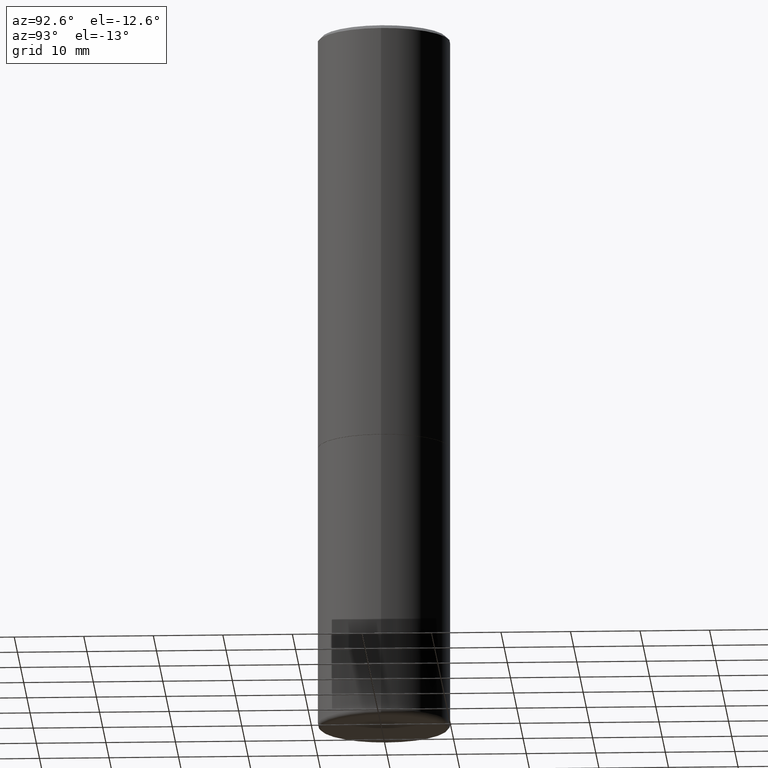
[diagram: clean part render]
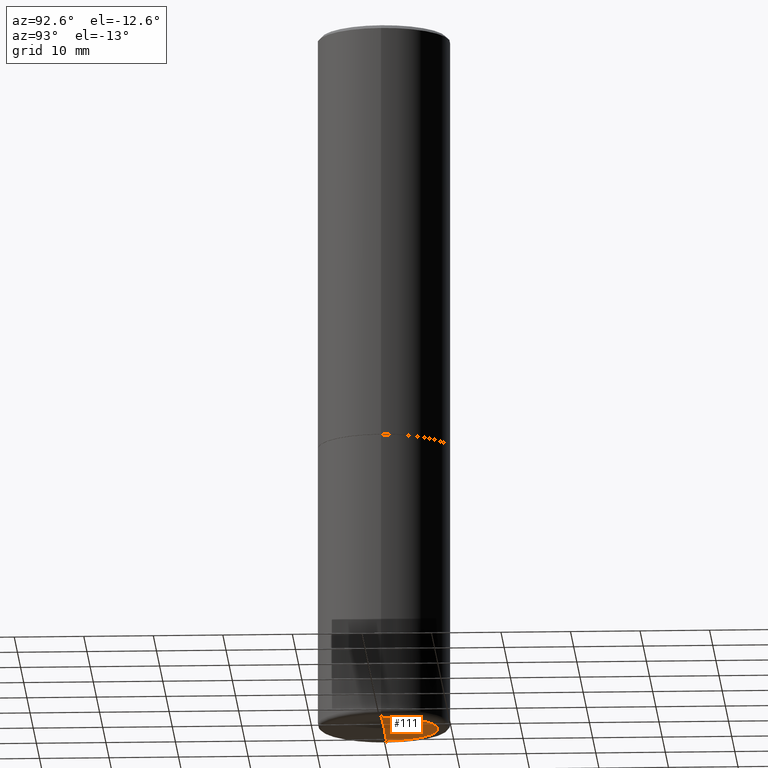
[diagram: same view with one face highlighted and labeled with its STEP entity id]
A machine part, auxiliary view. The second image highlights one B-rep face of the part: STEP entity #111.
In plain terms, the highlighted conical surface has half-angle 88 deg.
Its self-contained STEP definition (entity closure, byte-faithful):
#40 = LINE ( 'NONE', #376, #388 ) ;
#48 = DIRECTION ( 'NONE',  ( 1.000000000000000000, -6.982962677686265133E-15, 0.000000000000000000 ) ) ;
#58 = DIRECTION ( 'NONE',  ( 2.445468806185136597E-29, -3.491481338843145583E-15, -1.000000000000000000 ) ) ;
#62 = CARTESIAN_POINT ( 'NONE',  ( 9.781021626775434250E-29, -1.396470664370530441E-14, -3.999650947105539256 ) ) ;
#84 = DIRECTION ( 'NONE',  ( 0.9993908270190957621, -6.978169709227539121E-15, -0.03489949670250019204 ) ) ;
#111 = ADVANCED_FACE ( 'NONE', ( #182 ), #365, .F. ) ;
#118 = CIRCLE ( 'NONE', #171, 0.3047407039350492619 ) ;
#121 = VERTEX_POINT ( 'NONE', #140 ) ;
#125 = DIRECTION ( 'NONE',  ( -2.445468806185136597E-29, 3.491481338843145583E-15, 1.000000000000000000 ) ) ;
#127 = CARTESIAN_POINT ( 'NONE',  ( -0.3047407039350492619, -1.183671368175501508E-14, -3.999650947105539256 ) ) ;
#140 = CARTESIAN_POINT ( 'NONE',  ( 9.753116872605322365E-29, -1.393024421333557425E-14, -3.989009167228670716 ) ) ;
#143 = ORIENTED_EDGE ( 'NONE', *, *, #223, .T. ) ;
#155 = CARTESIAN_POINT ( 'NONE',  ( 9.781021626775434250E-29, -1.396470664370530441E-14, -3.999650947105539256 ) ) ;
#171 = AXIS2_PLACEMENT_3D ( 'NONE', #155, #125, #48 ) ;
#182 = FACE_OUTER_BOUND ( 'NONE', #244, .T. ) ;
#207 = VERTEX_POINT ( 'NONE', #461 ) ;
#223 = EDGE_CURVE ( 'NONE', #121, #312, #40, .T. ) ;
#243 = ORIENTED_EDGE ( 'NONE', *, *, #413, .F. ) ;
#244 = EDGE_LOOP ( 'NONE', ( #243, #143, #316 ) ) ;
#249 = AXIS2_PLACEMENT_3D ( 'NONE', #62, #58, #488 ) ;
#302 = DIRECTION ( 'NONE',  ( -0.9993908270190957621, 6.856857904024558837E-15, -0.03489949670250019204 ) ) ;
#312 = VERTEX_POINT ( 'NONE', #127 ) ;
#315 = LINE ( 'NONE', #432, #456 ) ;
#316 = ORIENTED_EDGE ( 'NONE', *, *, #411, .F. ) ;
#365 = CONICAL_SURFACE ( 'NONE', #249, 0.3047407039350492619, 1.535889741755010807 ) ;
#376 = CARTESIAN_POINT ( 'NONE',  ( -0.3047407039350492619, -1.183671368175501508E-14, -3.999650947105539256 ) ) ;
#388 = VECTOR ( 'NONE', #302, 39.37007874015748143 ) ;
#411 = EDGE_CURVE ( 'NONE', #207, #312, #118, .T. ) ;
#413 = EDGE_CURVE ( 'NONE', #121, #207, #315, .T. ) ;
#432 = CARTESIAN_POINT ( 'NONE',  ( 0.3047407039350492619, -1.605537963289119756E-14, -3.999650947105539256 ) ) ;
#456 = VECTOR ( 'NONE', #84, 39.37007874015748143 ) ;
#461 = CARTESIAN_POINT ( 'NONE',  ( 0.3047407039350492619, -1.605537963289119756E-14, -3.999650947105539256 ) ) ;
#488 = DIRECTION ( 'NONE',  ( -1.000000000000000000, 6.982962677686265133E-15, 0.000000000000000000 ) ) ;